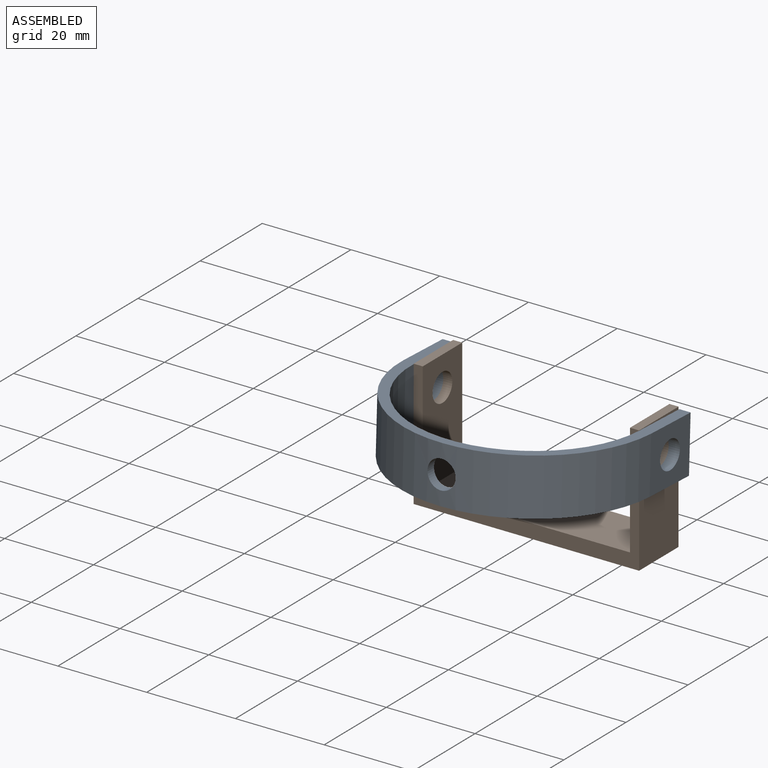
[diagram: assembled view]
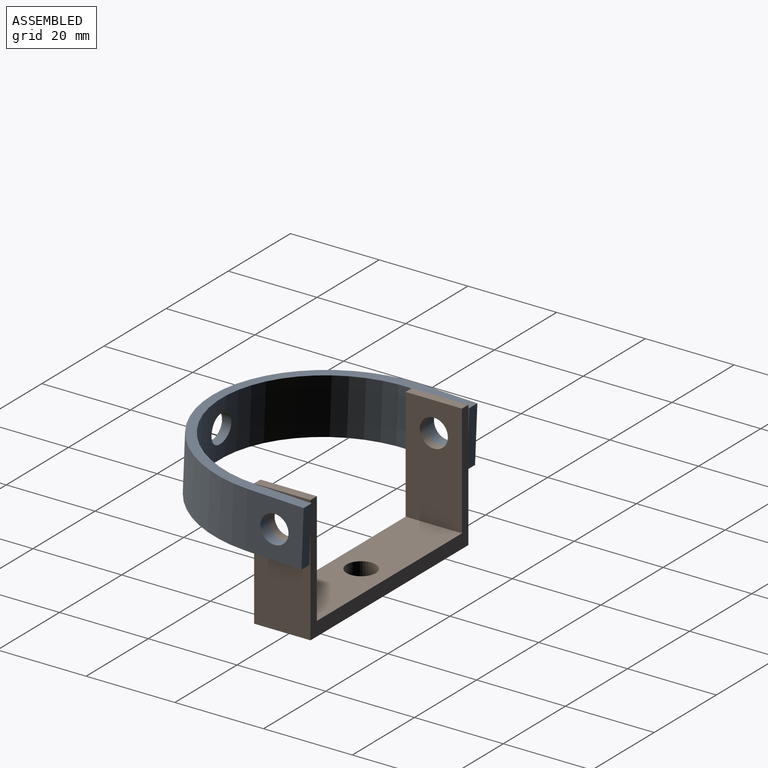
[diagram: assembled view, second angle]
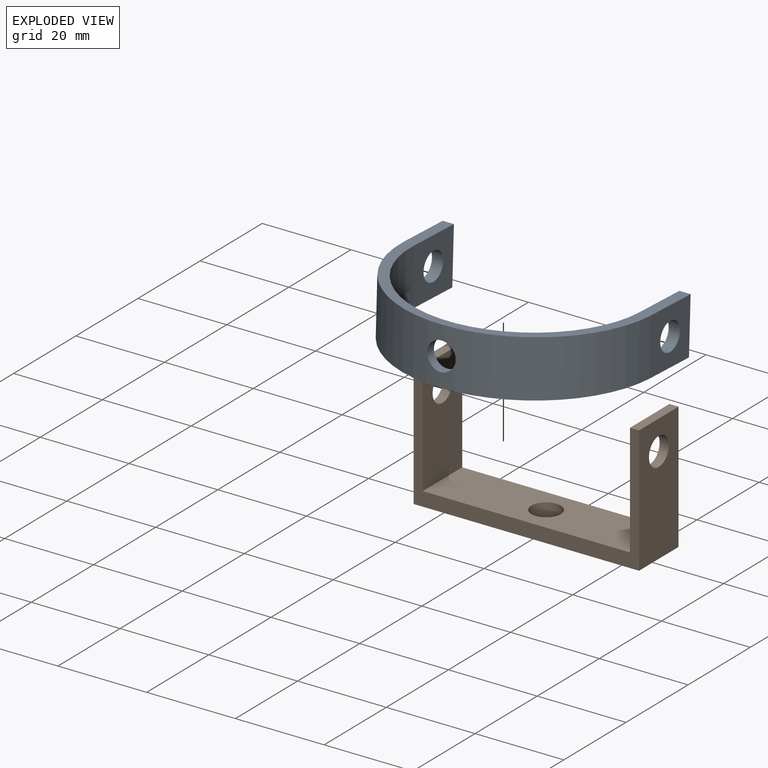
[diagram: exploded view]
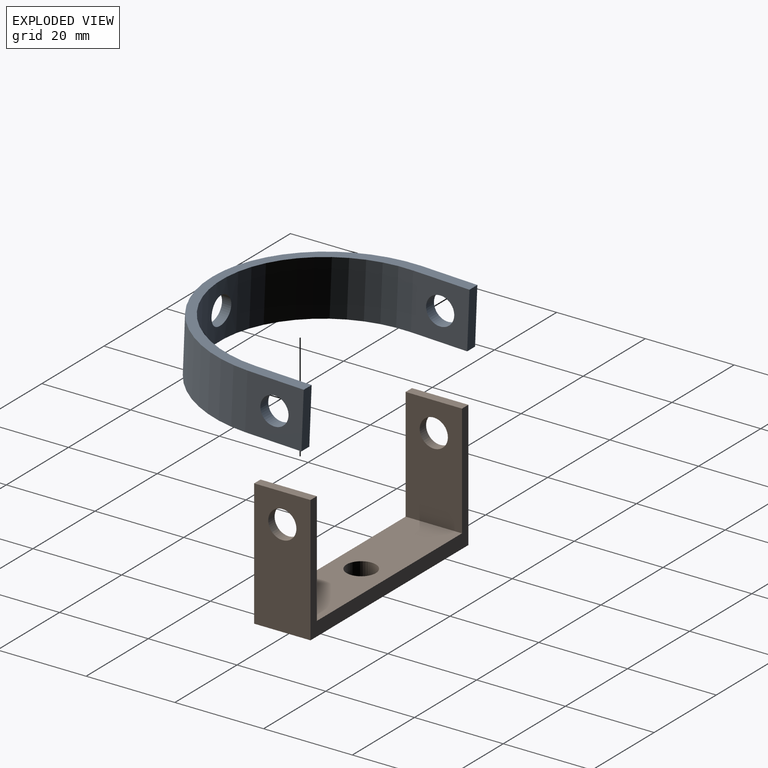
[diagram: exploded view, second angle]
ASSEMBLY  parts=2 mates=2
PART A: 13 faces, bbox 55.9x12.7x40.2 mm
  f0: cylinder r=25.4mm len=50.8mm, axis (0,1,0), area 981.7mm2, adj f2,f3,f4,f8,f12
  f1: cylinder r=27.94mm len=55.88mm, axis (0,1,0), area 1071.1mm2, adj f2,f3,f5,f7,f12
  f2: plane 55.88x40.17mm, normal (0,-1,0), area 251.1mm2, adj f0,f1,f4,f5,f6,f7,f8,f9
  f3: plane 55.88x40.17mm, normal (0,1,0), area 251.1mm2, adj f0,f1,f4,f5,f6,f7,f8,f9
  f4: plane 12.7x12.7mm, normal (1,0,0), area 129.6mm2, adj f0,f2,f3,f6,f11
  f5: plane 12.7x12.7mm, normal (-1,0,0), area 129.6mm2, adj f1,f2,f3,f6,f11
  f6: plane 12.7x2.54mm, normal (0,0,1), area 32.3mm2, adj f2,f3,f4,f5
  f7: plane 12.7x12.7mm, normal (1,0,0), area 129.6mm2, adj f1,f2,f3,f9,f10
  f8: plane 12.7x12.7mm, normal (-1,0,0), area 129.6mm2, adj f0,f2,f3,f9,f10
  f9: plane 12.7x2.54mm, normal (0,0,1), area 32.3mm2, adj f2,f3,f7,f8
  f10: cylinder r=3.17mm len=6.35mm, axis (-1,0,0), area 50.7mm2, adj f7,f8
  f11: cylinder r=3.17mm len=6.35mm, axis (-1,0,0), area 50.7mm2, adj f4,f5
  f12: cylinder r=3.17mm len=6.35mm, axis (0,0,1), area 41.4mm2, adj f0,f1
PART B: 13 faces, bbox 50.8x28.6x12.7 mm
  f0: plane 46.71x12.7mm, normal (0,-1,0), area 558.9mm2, adj f2,f4,f5,f7,f9
  f1: plane 28.58x12.7mm, normal (-1,0,0), area 331.2mm2, adj f2,f4,f6,f8,f12
  f2: plane 50.8x28.58mm, normal (0,0,-1), area 265.2mm2, adj f0,f1,f3,f6,f7,f8,f9,f10
  f3: plane 28.58x12.7mm, normal (1,0,0), area 331.2mm2, adj f2,f4,f6,f10,f11
  f4: plane 50.8x28.58mm, normal (0,0,1), area 265.2mm2, adj f0,f1,f3,f6,f7,f8,f9,f10
  f5: cylinder r=3.3mm len=6.6mm, axis (0,-1,0), area 65.9mm2, adj f0,f6
  f6: plane 50.8x12.7mm, normal (0,1,0), area 610.9mm2, adj f1,f2,f3,f4,f5
  f7: plane 25.4x12.7mm, normal (1,0,0), area 290.9mm2, adj f0,f2,f4,f8,f12
  f8: plane 12.7x2.05mm, normal (0,-1,0), area 26mm2, adj f1,f2,f4,f7
  f9: plane 25.4x12.7mm, normal (-1,0,0), area 290.9mm2, adj f0,f2,f4,f10,f11
  f10: plane 12.7x2.05mm, normal (0,-1,0), area 26mm2, adj f2,f3,f4,f9
  f11: cylinder r=3.17mm len=6.35mm, axis (-1,0,0), area 40.8mm2, adj f3,f9
  f12: cylinder r=3.17mm len=6.35mm, axis (-1,0,0), area 40.8mm2, adj f1,f7
PLACE A rot(axis=(-1,0,0),92.3deg) t=(-0.02,-6.6,12.63)mm
PLACE B rot(axis=(-1,0,0),90deg) t=(0,0,-3.18)mm
MATE revolute A.f10 <-> B.f11  axis (-1,0,0) through (25.4,0,18.71)mm
MATE revolute A.f10 <-> B.f11  axis (1,0,0) through (-25.4,0,18.71)mm
